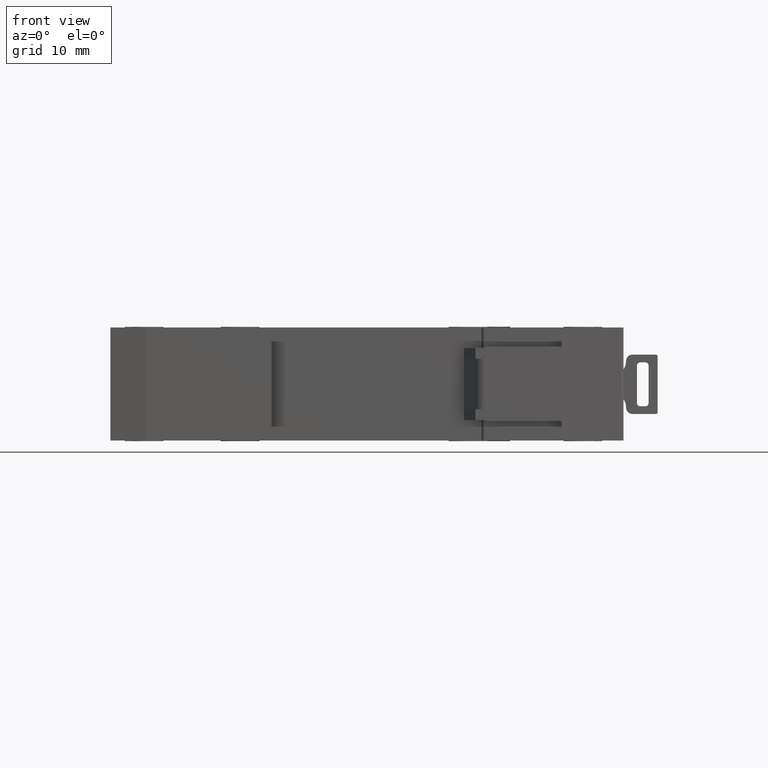
[diagram: clean part render]
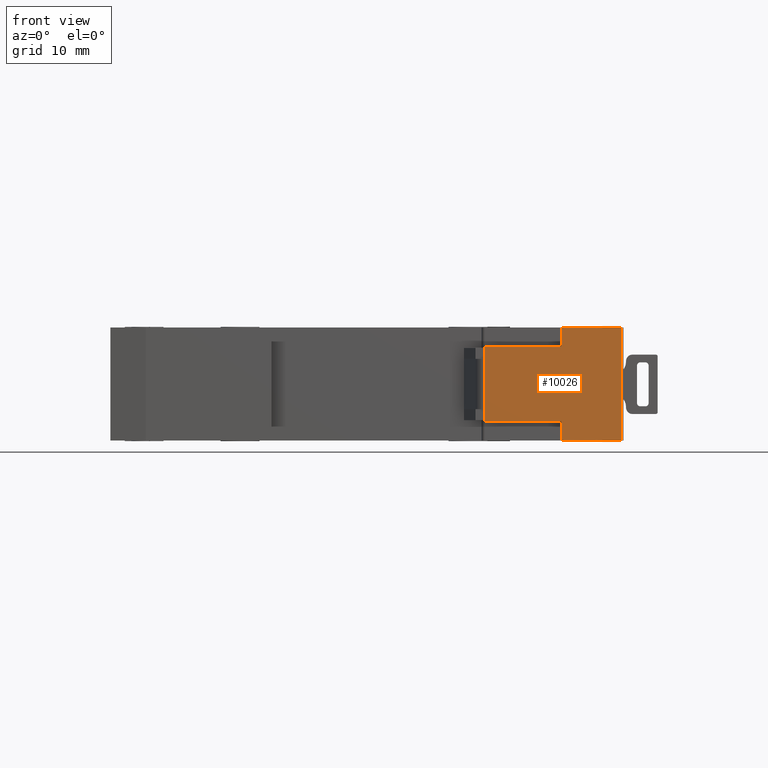
[diagram: same view with one face highlighted and labeled with its STEP entity id]
A machine part, front view. The second image highlights one B-rep face of the part: STEP entity #10026.
In plain terms, the highlighted planar face has unit normal (-0, -1, 0).
Its self-contained STEP definition (entity closure, byte-faithful):
#85 = DIRECTION ( 'NONE',  ( 1.000000000000000000, 2.182809699232938000E-016, 0.0000000000000000000 ) ) ;
#244 = VERTEX_POINT ( 'NONE', #9984 ) ;
#616 = VECTOR ( 'NONE', #5563, 1000.000000000000000 ) ;
#647 = EDGE_CURVE ( 'NONE', #16300, #1181, #13193, .T. ) ;
#748 = ORIENTED_EDGE ( 'NONE', *, *, #3142, .F. ) ;
#879 = DIRECTION ( 'NONE',  ( 1.000000000000000000, -1.112223995140649500E-013, 0.0000000000000000000 ) ) ;
#1181 = VERTEX_POINT ( 'NONE', #14524 ) ;
#1519 = VECTOR ( 'NONE', #11361, 1000.000000000000000 ) ;
#1648 = VERTEX_POINT ( 'NONE', #12594 ) ;
#1718 = DIRECTION ( 'NONE',  ( -0.0000000000000000000, -0.0000000000000000000, -1.000000000000000000 ) ) ;
#2108 = CARTESIAN_POINT ( 'NONE',  ( 3.355310721420568400E-030, -1.537152195447757200E-014, -5.750000000000000000 ) ) ;
#2312 = EDGE_CURVE ( 'NONE', #1648, #8745, #9566, .T. ) ;
#2458 = CARTESIAN_POINT ( 'NONE',  ( 70.39999999999999100, -4.541671877689661200E-018, 5.750000000000000000 ) ) ;
#2624 = DIRECTION ( 'NONE',  ( -1.000000000000000000, 1.112223995140649500E-013, 0.0000000000000000000 ) ) ;
#2649 = CARTESIAN_POINT ( 'NONE',  ( 9.066674948072921700E-025, 8.151842603365492200E-012, 8.750000000000000000 ) ) ;
#2998 = EDGE_CURVE ( 'NONE', #16149, #3545, #8130, .T. ) ;
#3142 = EDGE_CURVE ( 'NONE', #244, #16149, #5638, .T. ) ;
#3443 = EDGE_CURVE ( 'NONE', #16300, #244, #5427, .T. ) ;
#3545 = VERTEX_POINT ( 'NONE', #11533 ) ;
#3552 = CARTESIAN_POINT ( 'NONE',  ( 79.65206734769626000, -7.072514533011891400E-013, 8.750000000000000000 ) ) ;
#3829 = CARTESIAN_POINT ( 'NONE',  ( 70.39999999999999100, 3.217856775753200700E-013, 8.750000000000000000 ) ) ;
#4018 = EDGE_CURVE ( 'NONE', #1181, #10130, #9236, .T. ) ;
#4121 = EDGE_CURVE ( 'NONE', #1648, #10130, #7210, .T. ) ;
#4174 = CARTESIAN_POINT ( 'NONE',  ( 3.355310721420568400E-030, -1.537152195447757200E-014, 5.750000000000000000 ) ) ;
#4317 = AXIS2_PLACEMENT_3D ( 'NONE', #15160, #4858, #879 ) ;
#4668 = EDGE_CURVE ( 'NONE', #8745, #3545, #9413, .T. ) ;
#4693 = CARTESIAN_POINT ( 'NONE',  ( 79.65206734769626000, -7.072514533011891400E-013, 8.750000000000000000 ) ) ;
#4706 = ORIENTED_EDGE ( 'NONE', *, *, #4668, .T. ) ;
#4858 = DIRECTION ( 'NONE',  ( -1.112223995140649500E-013, -1.000000000000000000, 0.0000000000000000000 ) ) ;
#4968 = EDGE_LOOP ( 'NONE', ( #8333, #748, #12450, #9375, #9980, #13989, #5565, #4706 ) ) ;
#5427 = LINE ( 'NONE', #4693, #11515 ) ;
#5563 = DIRECTION ( 'NONE',  ( -0.0000000000000000000, -0.0000000000000000000, 1.000000000000000000 ) ) ;
#5565 = ORIENTED_EDGE ( 'NONE', *, *, #2312, .T. ) ;
#5638 = LINE ( 'NONE', #6157, #6085 ) ;
#6030 = FACE_OUTER_BOUND ( 'NONE', #4968, .T. ) ;
#6067 = DIRECTION ( 'NONE',  ( -0.0000000000000000000, -0.0000000000000000000, -1.000000000000000000 ) ) ;
#6085 = VECTOR ( 'NONE', #15045, 1000.000000000000000 ) ;
#6157 = CARTESIAN_POINT ( 'NONE',  ( 9.066674948072921700E-025, 8.151842603365492200E-012, -8.750000000000000000 ) ) ;
#6568 = DIRECTION ( 'NONE',  ( 0.0000000000000000000, 0.0000000000000000000, -1.000000000000000000 ) ) ;
#7210 = LINE ( 'NONE', #4174, #13589 ) ;
#7261 = CARTESIAN_POINT ( 'NONE',  ( 70.39999999999999100, -4.541671877689661200E-018, -8.750000000000000000 ) ) ;
#8130 = LINE ( 'NONE', #15841, #616 ) ;
#8333 = ORIENTED_EDGE ( 'NONE', *, *, #2998, .F. ) ;
#8745 = VERTEX_POINT ( 'NONE', #10310 ) ;
#9236 = LINE ( 'NONE', #3829, #12214 ) ;
#9375 = ORIENTED_EDGE ( 'NONE', *, *, #647, .T. ) ;
#9413 = LINE ( 'NONE', #2108, #1519 ) ;
#9566 = LINE ( 'NONE', #9660, #12957 ) ;
#9660 = CARTESIAN_POINT ( 'NONE',  ( 58.49999999999850800, -2.602085213965210600E-015, 8.750000000000000000 ) ) ;
#9980 = ORIENTED_EDGE ( 'NONE', *, *, #4018, .T. ) ;
#9984 = CARTESIAN_POINT ( 'NONE',  ( 79.65206734769626000, -7.072514533011891400E-013, -8.750000000000000000 ) ) ;
#10026 = ADVANCED_FACE ( 'NONE', ( #6030 ), #16465, .T. ) ;
#10130 = VERTEX_POINT ( 'NONE', #2458 ) ;
#10310 = CARTESIAN_POINT ( 'NONE',  ( 58.49999999999850800, -2.602085213965210600E-015, -5.750000000000000000 ) ) ;
#11361 = DIRECTION ( 'NONE',  ( 1.000000000000000000, 2.182809699232938000E-016, 0.0000000000000000000 ) ) ;
#11515 = VECTOR ( 'NONE', #6067, 1000.000000000000000 ) ;
#11533 = CARTESIAN_POINT ( 'NONE',  ( 70.39999999999999100, -4.541671877689661200E-018, -5.750000000000000000 ) ) ;
#12214 = VECTOR ( 'NONE', #6568, 1000.000000000000000 ) ;
#12450 = ORIENTED_EDGE ( 'NONE', *, *, #3443, .F. ) ;
#12594 = CARTESIAN_POINT ( 'NONE',  ( 58.49999999999850800, -2.602085213965210600E-015, 5.750000000000000000 ) ) ;
#12957 = VECTOR ( 'NONE', #1718, 1000.000000000000000 ) ;
#13193 = LINE ( 'NONE', #2649, #16179 ) ;
#13589 = VECTOR ( 'NONE', #85, 1000.000000000000000 ) ;
#13989 = ORIENTED_EDGE ( 'NONE', *, *, #4121, .F. ) ;
#14524 = CARTESIAN_POINT ( 'NONE',  ( 70.39999999999999100, -4.541671877689661200E-018, 8.750000000000000000 ) ) ;
#15045 = DIRECTION ( 'NONE',  ( -1.000000000000000000, 1.112223995140649500E-013, 0.0000000000000000000 ) ) ;
#15160 = CARTESIAN_POINT ( 'NONE',  ( 9.066674948072921700E-025, 8.151842603365492200E-012, 8.750000000000000000 ) ) ;
#15841 = CARTESIAN_POINT ( 'NONE',  ( 70.39999999999999100, -4.541671877689661200E-018, -8.849999999999999600 ) ) ;
#16149 = VERTEX_POINT ( 'NONE', #7261 ) ;
#16179 = VECTOR ( 'NONE', #2624, 1000.000000000000000 ) ;
#16300 = VERTEX_POINT ( 'NONE', #3552 ) ;
#16465 = PLANE ( 'NONE',  #4317 ) ;